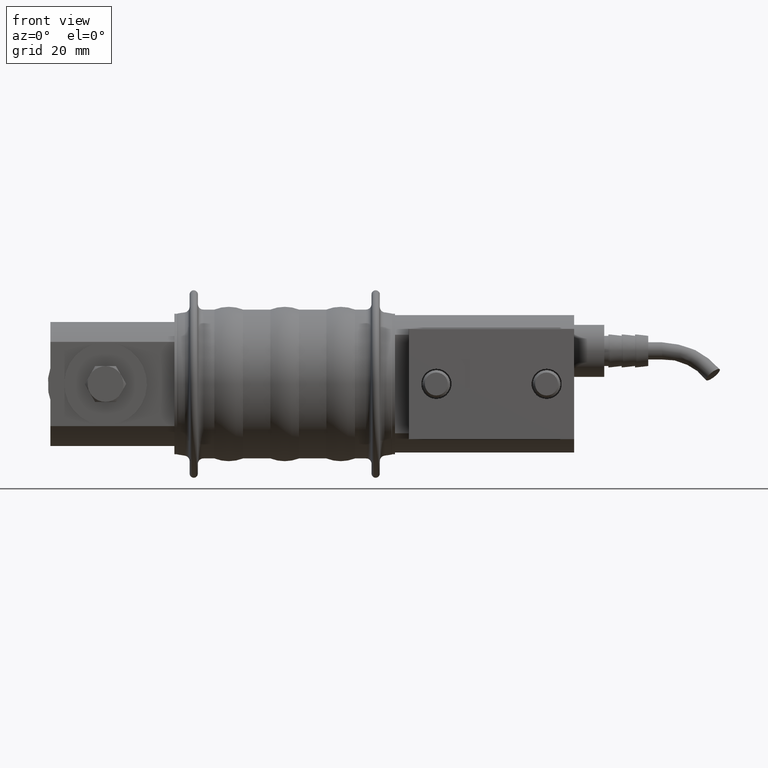
[diagram: clean part render]
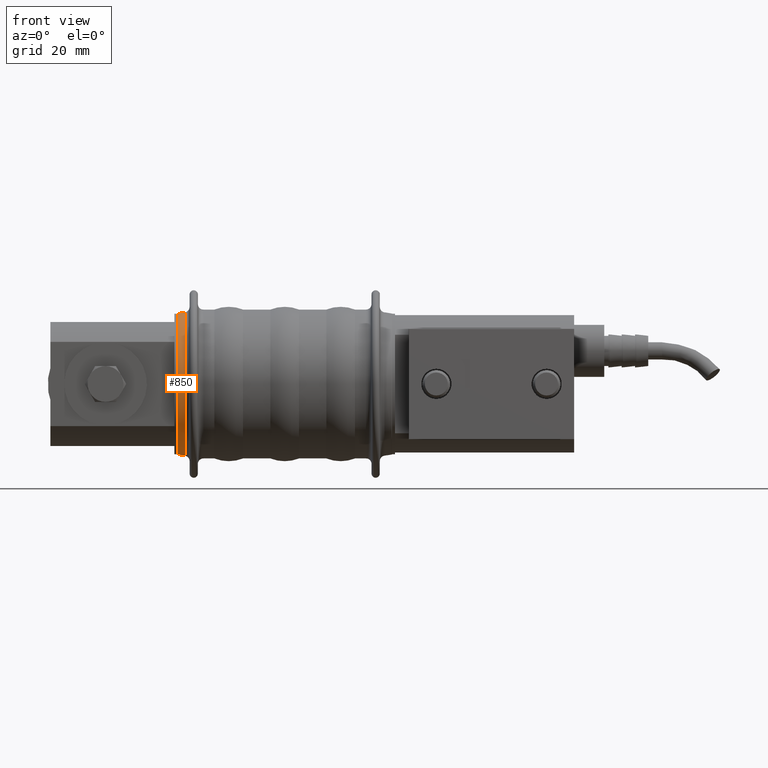
[diagram: same view with one face highlighted and labeled with its STEP entity id]
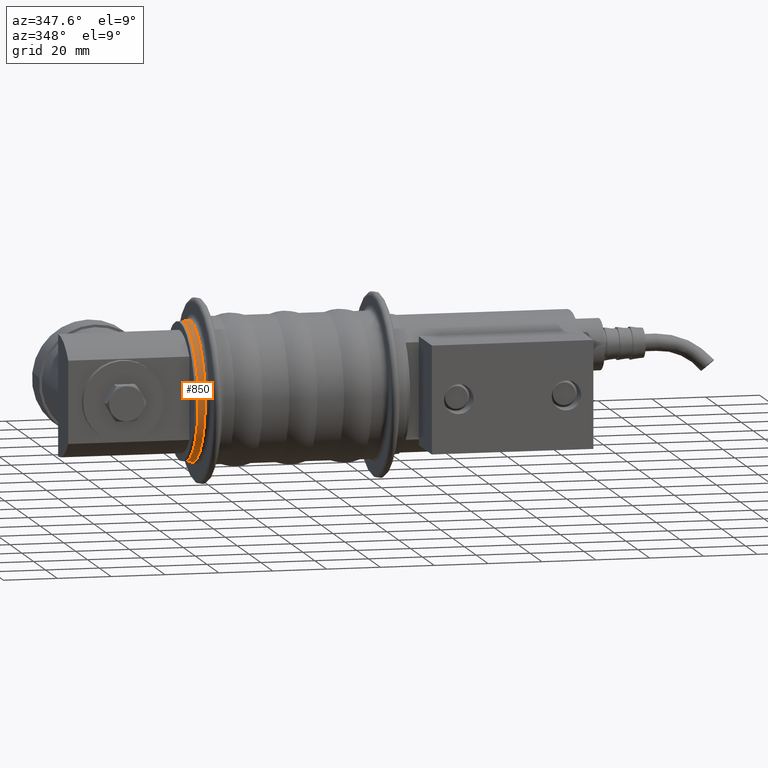
[diagram: same view with one face highlighted and labeled with its STEP entity id]
A machine part, front view. The second image highlights one B-rep face of the part: STEP entity #850.
A second angle (auxiliary view) of the same face is appended — the face is thin or edge-on in the first view.
In plain terms, the highlighted conical surface has half-angle 8.884 deg.
Its self-contained STEP definition (entity closure, byte-faithful):
#455 = CARTESIAN_POINT ( 'NONE',  ( 78.75000000000001400, 0.0000000000000000000, 25.59999999999999100 ) ) ;
#554 = EDGE_CURVE ( 'NONE', #999, #3767, #6245, .T. ) ;
#660 = VERTEX_POINT ( 'NONE', #2596 ) ;
#838 = AXIS2_PLACEMENT_3D ( 'NONE', #1223, #6584, #2862 ) ;
#850 = ADVANCED_FACE ( 'NONE', ( #2645 ), #1485, .T. ) ;
#900 = DIRECTION ( 'NONE',  ( 1.000000000000000000, 0.0000000000000000000, 0.0000000000000000000 ) ) ;
#962 = DIRECTION ( 'NONE',  ( 1.000000000000000000, 0.0000000000000000000, 0.0000000000000000000 ) ) ;
#999 = VERTEX_POINT ( 'NONE', #4695 ) ;
#1223 = CARTESIAN_POINT ( 'NONE',  ( 78.75000000000001400, 0.0000000000000000000, 0.0000000000000000000 ) ) ;
#1451 = DIRECTION ( 'NONE',  ( -0.9880017723144939300, 0.0000000000000000000, 0.1544425391639848400 ) ) ;
#1485 = CONICAL_SURFACE ( 'NONE', #838, 25.59999999999999100, 0.1550631978263739800 ) ;
#1846 = LINE ( 'NONE', #1927, #2856 ) ;
#1927 = CARTESIAN_POINT ( 'NONE',  ( 78.75000000000001400, 3.135095805817223200E-015, -25.59999999999999100 ) ) ;
#2028 = CARTESIAN_POINT ( 'NONE',  ( 78.75000000000001400, 0.0000000000000000000, 0.0000000000000000000 ) ) ;
#2596 = CARTESIAN_POINT ( 'NONE',  ( 76.19111492167203900, 3.184081677783118200E-015, -26.00000000000000000 ) ) ;
#2645 = FACE_OUTER_BOUND ( 'NONE', #6824, .T. ) ;
#2856 = VECTOR ( 'NONE', #6239, 1000.000000000000000 ) ;
#2862 = DIRECTION ( 'NONE',  ( 0.0000000000000000000, 0.0000000000000000000, 1.000000000000000000 ) ) ;
#3044 = CARTESIAN_POINT ( 'NONE',  ( 76.19111492167203900, 0.0000000000000000000, 0.0000000000000000000 ) ) ;
#3342 = LINE ( 'NONE', #455, #4786 ) ;
#3346 = CARTESIAN_POINT ( 'NONE',  ( 76.19111492167203900, 0.0000000000000000000, 26.00000000000000000 ) ) ;
#3361 = EDGE_CURVE ( 'NONE', #3767, #660, #1846, .T. ) ;
#3423 = AXIS2_PLACEMENT_3D ( 'NONE', #3044, #900, #6295 ) ;
#3685 = EDGE_CURVE ( 'NONE', #999, #6094, #3342, .T. ) ;
#3726 = EDGE_CURVE ( 'NONE', #6094, #660, #4032, .T. ) ;
#3767 = VERTEX_POINT ( 'NONE', #5683 ) ;
#4032 = CIRCLE ( 'NONE', #3423, 26.00000000000000000 ) ;
#4518 = AXIS2_PLACEMENT_3D ( 'NONE', #2028, #962, #4709 ) ;
#4695 = CARTESIAN_POINT ( 'NONE',  ( 78.75000000000001400, 3.135095805817222800E-015, 25.59999999999999100 ) ) ;
#4709 = DIRECTION ( 'NONE',  ( 0.0000000000000000000, 0.0000000000000000000, -1.000000000000000000 ) ) ;
#4786 = VECTOR ( 'NONE', #1451, 1000.000000000000000 ) ;
#5683 = CARTESIAN_POINT ( 'NONE',  ( 78.75000000000001400, 0.0000000000000000000, -25.59999999999999100 ) ) ;
#6010 = ORIENTED_EDGE ( 'NONE', *, *, #3685, .T. ) ;
#6094 = VERTEX_POINT ( 'NONE', #3346 ) ;
#6143 = ORIENTED_EDGE ( 'NONE', *, *, #3726, .T. ) ;
#6239 = DIRECTION ( 'NONE',  ( -0.9880017723144939300, 1.891375612393637900E-017, -0.1544425391639848400 ) ) ;
#6245 = CIRCLE ( 'NONE', #4518, 25.59999999999999100 ) ;
#6295 = DIRECTION ( 'NONE',  ( 0.0000000000000000000, 0.0000000000000000000, -1.000000000000000000 ) ) ;
#6345 = ORIENTED_EDGE ( 'NONE', *, *, #3361, .F. ) ;
#6584 = DIRECTION ( 'NONE',  ( -1.000000000000000000, 0.0000000000000000000, 0.0000000000000000000 ) ) ;
#6586 = ORIENTED_EDGE ( 'NONE', *, *, #554, .F. ) ;
#6824 = EDGE_LOOP ( 'NONE', ( #6345, #6586, #6010, #6143 ) ) ;